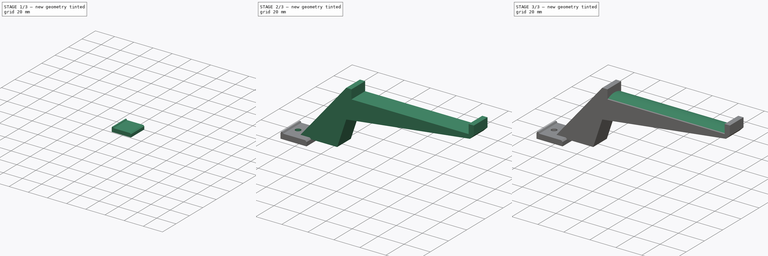
[diagram: build sequence overview — one tinted view per stage of 3, left to right]
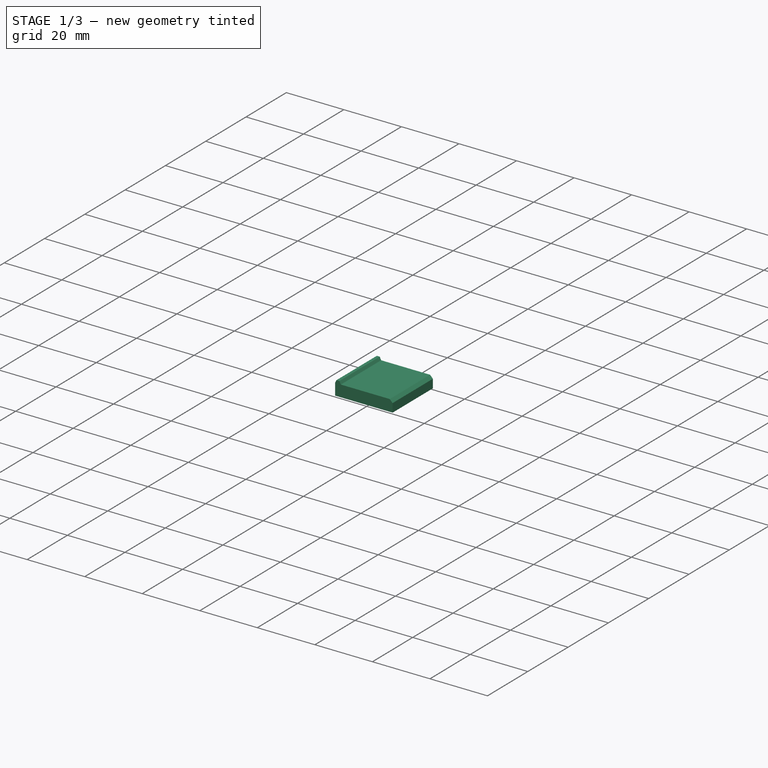
[diagram: stage 1 of 3 — iso view after this stage's code; geometry added in this stage tinted green]
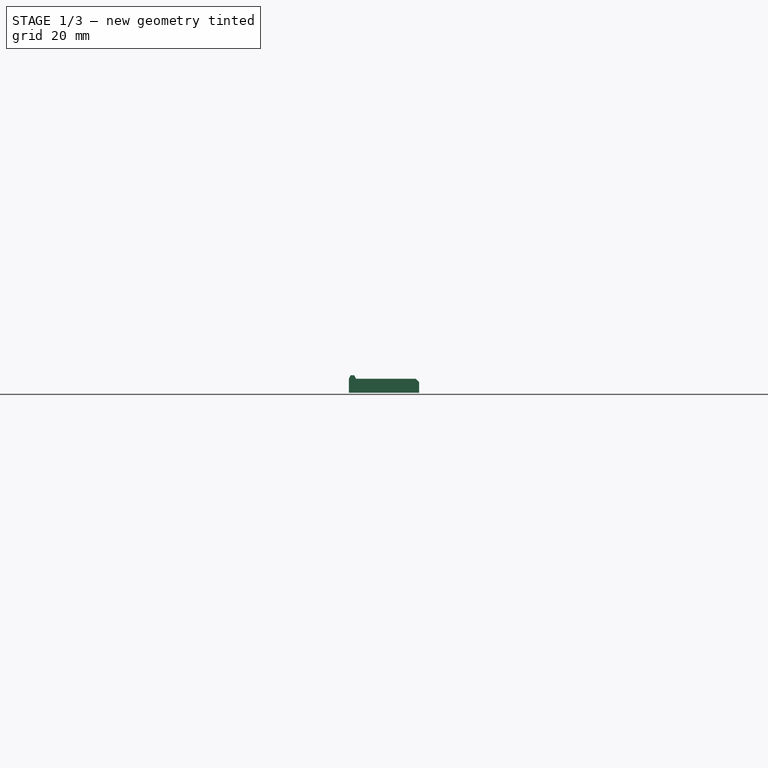
[diagram: stage 1 of 3 — front view after this stage's code; geometry added in this stage tinted green]
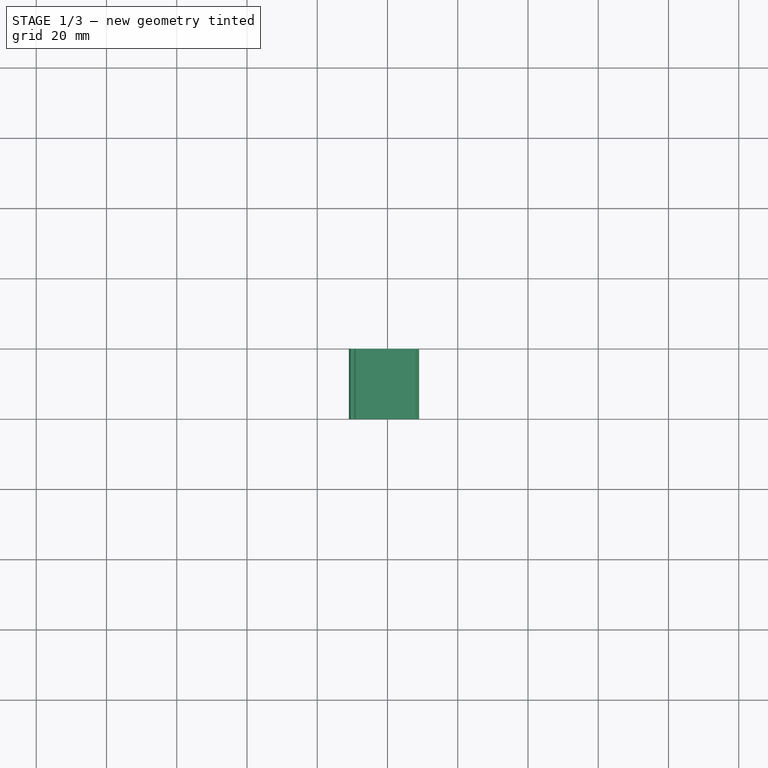
[diagram: stage 1 of 3 — top view after this stage's code; geometry added in this stage tinted green]
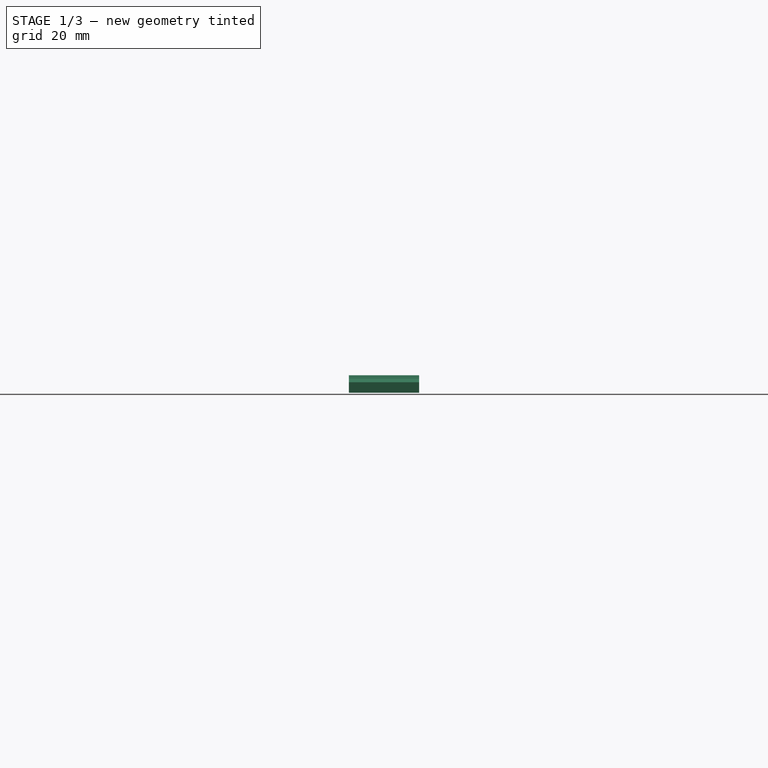
[diagram: stage 1 of 3 — right view after this stage's code; geometry added in this stage tinted green]
FCSTD DOCUMENT  (FreeCAD 0.14R3692 (Git))
Label: addon-spool-holder
License: CC-BY 3.0
LicenseURL: http://creativecommons.org/licenses/by/3.0/
objects: Sketcher::SketchObject×4, PartDesign::Pad×3, Part::Chamfer×1, PartDesign::Pocket×1, Part::MultiFuse×1, Part::Feature×1
note: 15 computed .brp shape members not serialized (recipe doc carries the construction recipe); baked Part::Feature solids carry a one-line shape summary decoded from their .brp

FEATURE [Sketcher::SketchObject] Sketch  label="spool-holder-sketch"
  Placement = pos=(0,0,0) rot=(1,0,0;1.5708rad)
  sketch-geometry (11):
    g0: LineSegment StartX=0 StartY=0 StartZ=0 EndX=29 EndY=0 EndZ=0
    g1: LineSegment StartX=29 StartY=0 StartZ=0 EndX=36 EndY=21 EndZ=0
    g2: LineSegment StartX=0 StartY=0 StartZ=0 EndX=36 EndY=43 EndZ=0
    g3: LineSegment StartX=36 StartY=43 StartZ=0 EndX=40 EndY=43 EndZ=0
    g4: LineSegment StartX=40 StartY=43 StartZ=0 EndX=40 EndY=36 EndZ=0
    g5: LineSegment StartX=40 StartY=36 StartZ=0 EndX=130 EndY=36 EndZ=0
    g6: LineSegment StartX=130 StartY=36 StartZ=0 EndX=130 EndY=43 EndZ=0
    g7: LineSegment StartX=130 StartY=43 StartZ=0 EndX=134 EndY=43 EndZ=0
    g8: LineSegment StartX=134 StartY=43 StartZ=0 EndX=134 EndY=36 EndZ=0
    g9: LineSegment StartX=134 StartY=36 StartZ=0 EndX=131 EndY=33 EndZ=0
    g10: LineSegment StartX=131 StartY=33 StartZ=0 EndX=36 EndY=21 EndZ=0
  constraints (32):
    c: Coincident(g0,g-1)
    c: Horizontal(g0)
    c: Coincident(g1,g0)
    c: Coincident(g2,g-1)
    c: Coincident(g3,g2)
    c: Horizontal(g3)
    c: Coincident(g4,g3)
    c: Vertical(g4)
    c: Coincident(g5,g4)
    c: Horizontal(g5)
    c: Coincident(g6,g5)
    c: Vertical(g6)
    c: Coincident(g7,g6)
    c: Horizontal(g7)
    c: Coincident(g7,g8)
    c: Vertical(g8)
    c: Coincident(g8,g9)
    c: Coincident(g9,g10)
    c: Coincident(g10,g1)
    c: DistanceY(g4) = -7
    c: Equal(g6,g4)
    c: DistanceX(g3) = 4
    c: Equal(g7,g3)
    c: DistanceX(g9,g8) = 3
    c: DistanceX(g1,g9) = 95
    c: DistanceX(g0) = 29
    c: DistanceX(g0,g1) = 7
    c: DistanceX(g4,g5) = 90
    c: DistanceY(g-1,g4) = 36
    c: DistanceY(g-1,g1) = 21
    c: DistanceY(g-1,g9) = 33
    c: DistanceY(g9,g8) = 3
FEATURE [Sketcher::SketchObject] Sketch001  label="base-sketch"
  Placement = pos=(0,0,0) rot=(1,0,0;1.5708rad)
  sketch-geometry (7):
    g0: LineSegment StartX=-11 StartY=-3 StartZ=0 EndX=9 EndY=-3 EndZ=0
    g1: LineSegment StartX=9 StartY=-3 StartZ=0 EndX=9 EndY=1 EndZ=0
    g2: LineSegment StartX=9 StartY=1 StartZ=0 EndX=-9 EndY=1 EndZ=0
    g3: LineSegment StartX=-11 StartY=1 StartZ=0 EndX=-11 EndY=-3 EndZ=0
    g4: LineSegment StartX=-9 StartY=1 StartZ=0 EndX=-9.5 EndY=2 EndZ=0
    g5: LineSegment StartX=-9.5 StartY=2 StartZ=0 EndX=-10.5 EndY=2 EndZ=0
    g6: LineSegment StartX=-10.5 StartY=2 StartZ=0 EndX=-11 EndY=1 EndZ=0
  constraints (21):
    c: Coincident(g0,g1)
    c: Coincident(g1,g2)
    c: Coincident(g3,g0)
    c: Horizontal(g0)
    c: Horizontal(g2)
    c: Vertical(g1)
    c: Vertical(g3)
    c: DistanceX(g0) = 20
    c: DistanceY(g3) = -4
    c: DistanceX(g-1,g1) = 9
    c: DistanceY(g-1,g1) = 1
    c: Coincident(g4,g5)
    c: Coincident(g5,g6)
    c: Coincident(g2,g4)
    c: Coincident(g3,g6)
    c: DistanceX(g5) = -1
    c: DistanceX(g2,g3) = -2
    c: Equal(g6,g4)
    c: DistanceY(g4,g2) = -1
    c: Horizontal(g5)
    c: Equal(g1,g3)
FEATURE [PartDesign::Pad] Pad  label="base-pad"
  Length = 20
  Length2 = 100
  Placement = pos=(0,0,0) rot=(1,0,0;1.5708rad)
  Sketch = -> Sketch001
  Type = 0
FEATURE [Part::Chamfer] Chamfer  label="base-chamfer"
  Base = -> Pad
  Edges = 1 edges r=1: [Edge5]
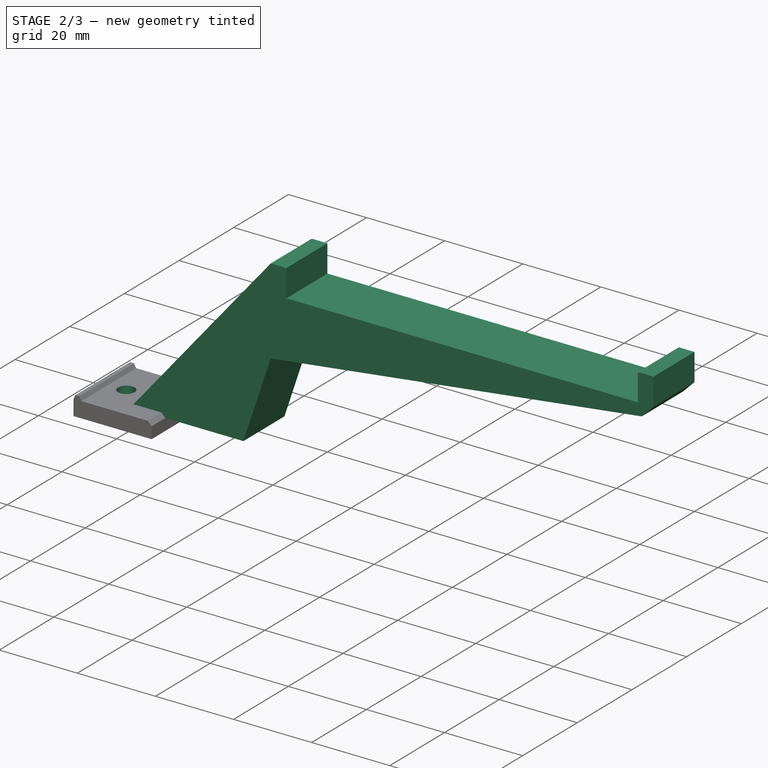
[diagram: stage 2 of 3 — iso view after this stage's code; geometry added in this stage tinted green]
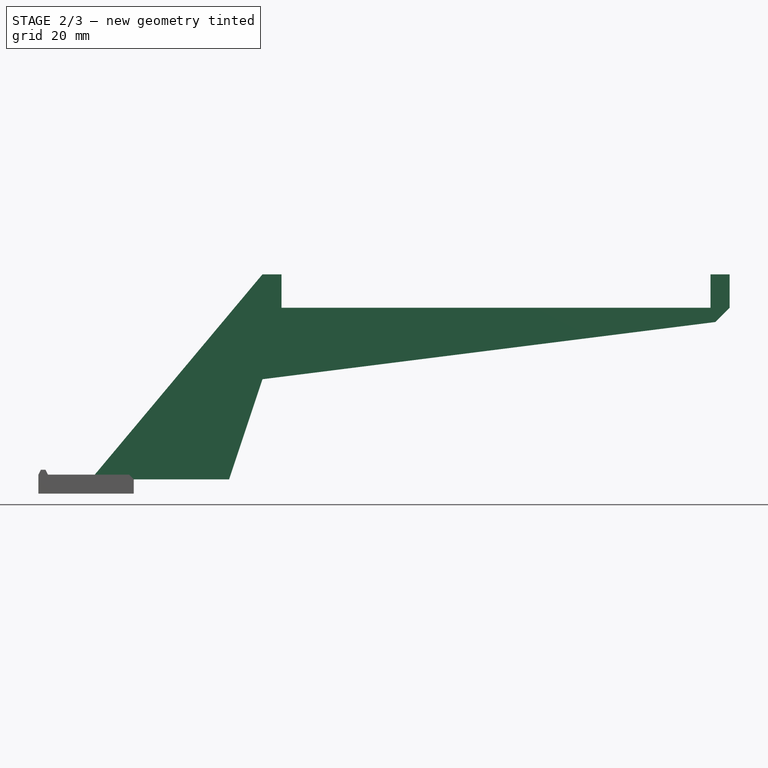
[diagram: stage 2 of 3 — front view after this stage's code; geometry added in this stage tinted green]
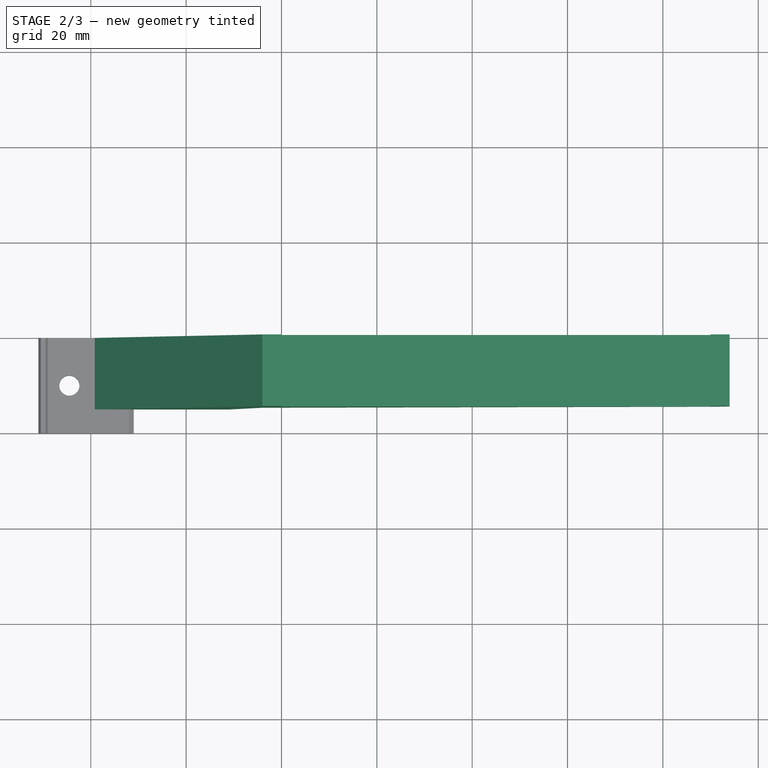
[diagram: stage 2 of 3 — top view after this stage's code; geometry added in this stage tinted green]
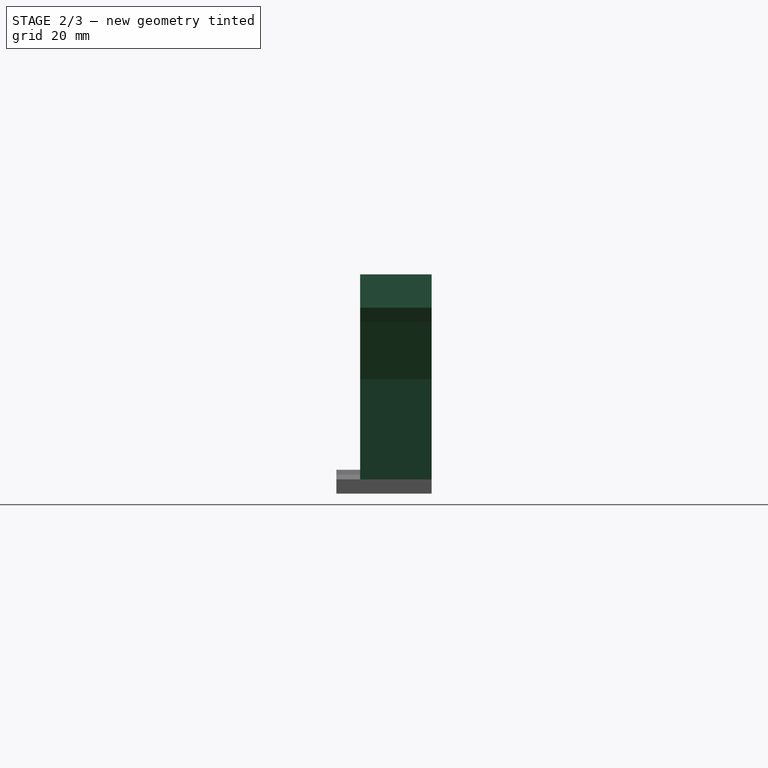
[diagram: stage 2 of 3 — right view after this stage's code; geometry added in this stage tinted green]
FEATURE [PartDesign::Pad] Pad001  label="spool-holder-pad"
  Length = 15
  Length2 = 100
  Placement = pos=(0,0,0) rot=(1,0,0;1.5708rad)
  Sketch = -> Sketch
  Type = 0
FEATURE [Sketcher::SketchObject] Sketch003  label="screw-hole-sketch"
  Placement = pos=(0,0,1) rot=(0,0,1;0rad)
  Support = -> Chamfer [Face6]
  sketch-geometry (1):
    g0: Circle CenterX=-4.5 CenterY=-10 CenterZ=0 NormalX=0 NormalY=0 NormalZ=1 Radius=2.1
  constraints (3):
    c: DistanceY(g-1,g0) = -10
    c: DistanceX(g-1,g0) = -4.5
    c: Radius(g0) = 2.1
FEATURE [PartDesign::Pocket] Pocket  label="screw-hole-pocket"
  Length = 5
  Sketch = -> Sketch003
  Type = 0
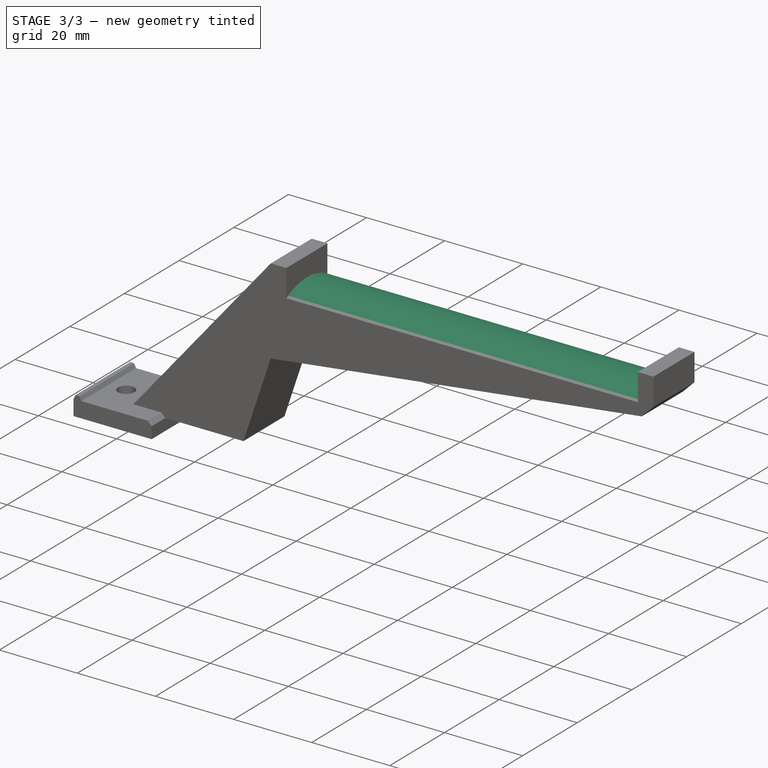
[diagram: stage 3 of 3 — iso view after this stage's code; geometry added in this stage tinted green]
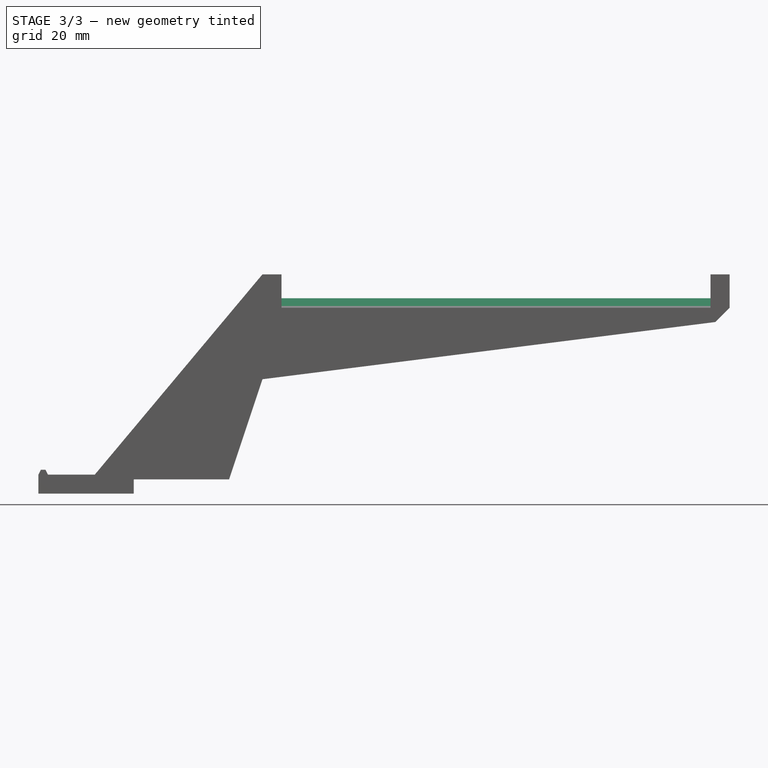
[diagram: stage 3 of 3 — front view after this stage's code; geometry added in this stage tinted green]
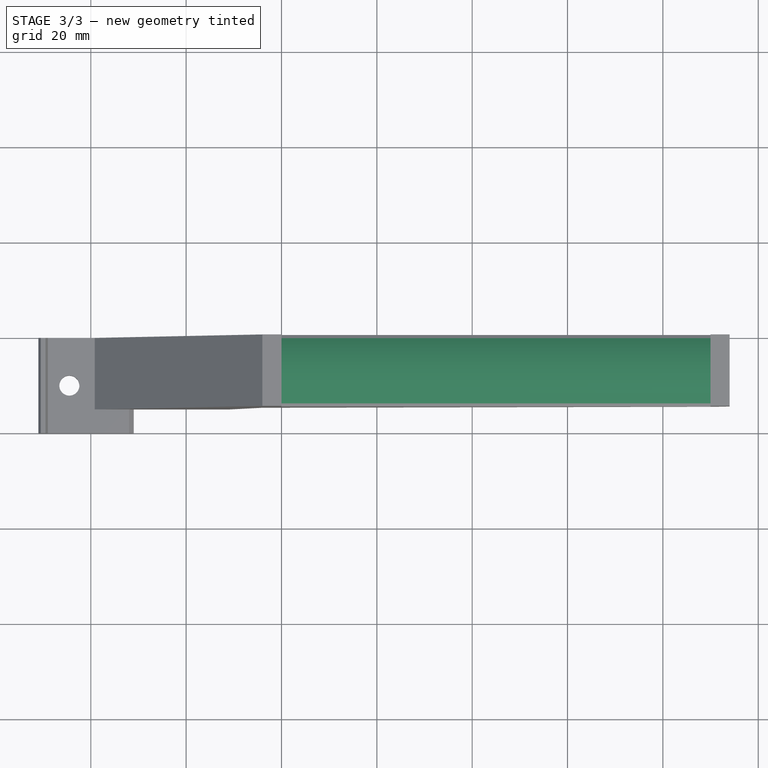
[diagram: stage 3 of 3 — top view after this stage's code; geometry added in this stage tinted green]
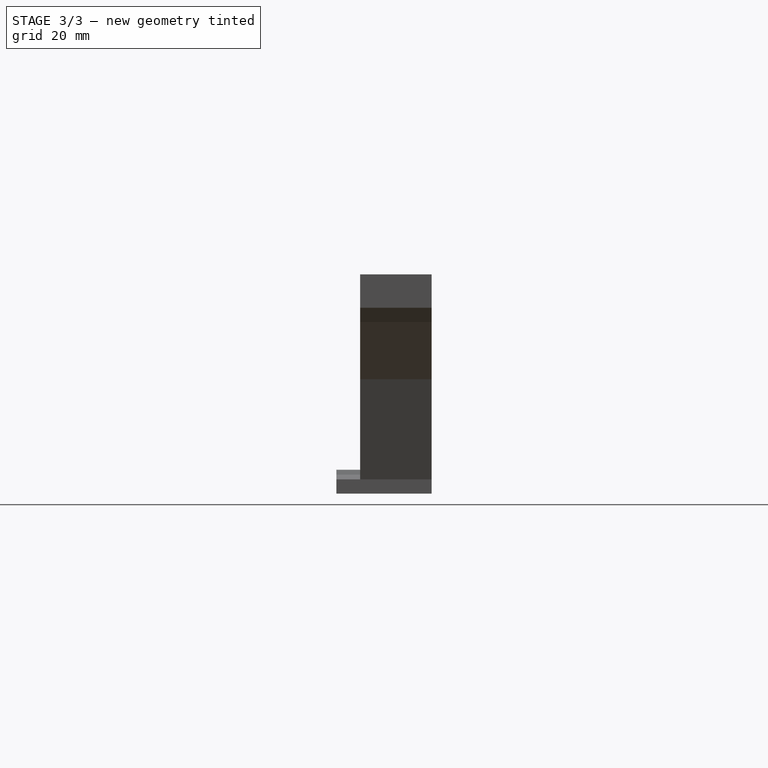
[diagram: stage 3 of 3 — right view after this stage's code; geometry added in this stage tinted green]
FEATURE [Sketcher::SketchObject] Sketch002  label="rounded-sketch"
  ExternalGeometry = -> [Pad001]
  Placement = pos=(40,0,0) rot=(0.707107,0,0.707107;3.14159rad)
  Support = -> Pad001 [Face9]
  sketch-geometry (3):
    g0: ArcOfCircle CenterX=22.9375 CenterY=7.5 CenterZ=0 NormalX=0 NormalY=0 NormalZ=1 Radius=15.0625 StartAngle=5.76198 EndAngle=6.80439
    g1: LineSegment [constr] StartX=22.9375 StartY=7.5 StartZ=0 EndX=38 EndY=7.5 EndZ=0
    g2: LineSegment StartX=36 StartY=15 StartZ=0 EndX=36 EndY=-1e-12 EndZ=0
  constraints (9):
    c: Coincident(g1,g0)
    c: PointOnObject(g1,g0)
    c: Angle(g0,g1) = 1.5708
    c: DistanceX(g1,g0) = -2
    c: Coincident(g0,g2)
    c: Coincident(g2,g0)
    c: Coincident(g0,g-3)
    c: Coincident(g0,g-3)
    c: Angle(g2,g1) = 1.5708
FEATURE [PartDesign::Pad] Pad002  label="rounded-pad"
  Length = 90
  Length2 = 100
  Placement = pos=(0,0,0) rot=(1,0,0;1.5708rad)
  Sketch = -> Sketch002
  Type = 0
FEATURE [Part::MultiFuse] Fusion  label="spool-holder-base-fusion"
  Shapes = -> [Pocket,Pad002]
FEATURE [Part::Feature] Fusion002  label="addon-spool-holder"
  shape: bbox 145 x 20 x 46 mm, 23 faces (baked)
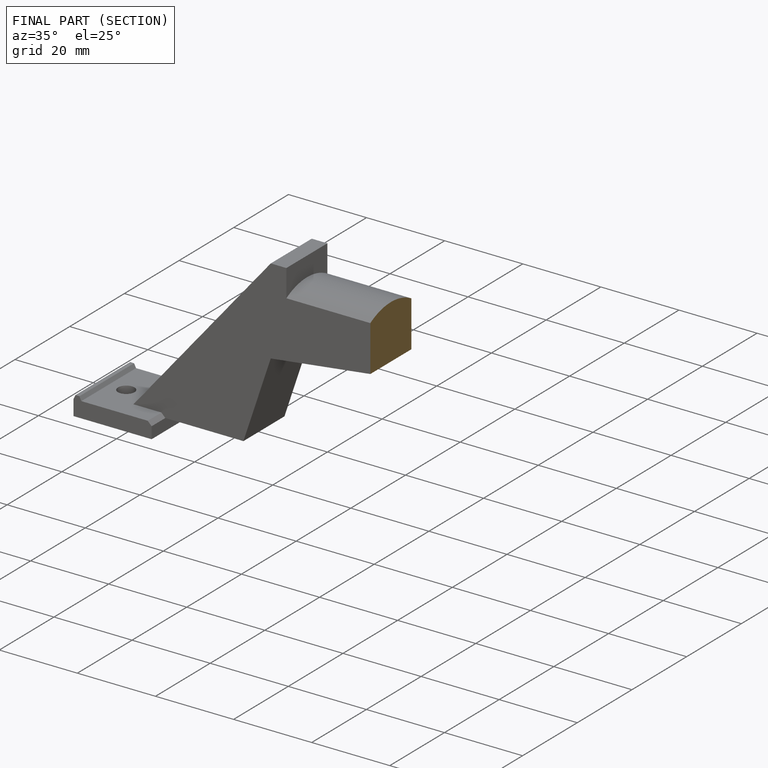
[diagram: finished part — half-section view (interior)]
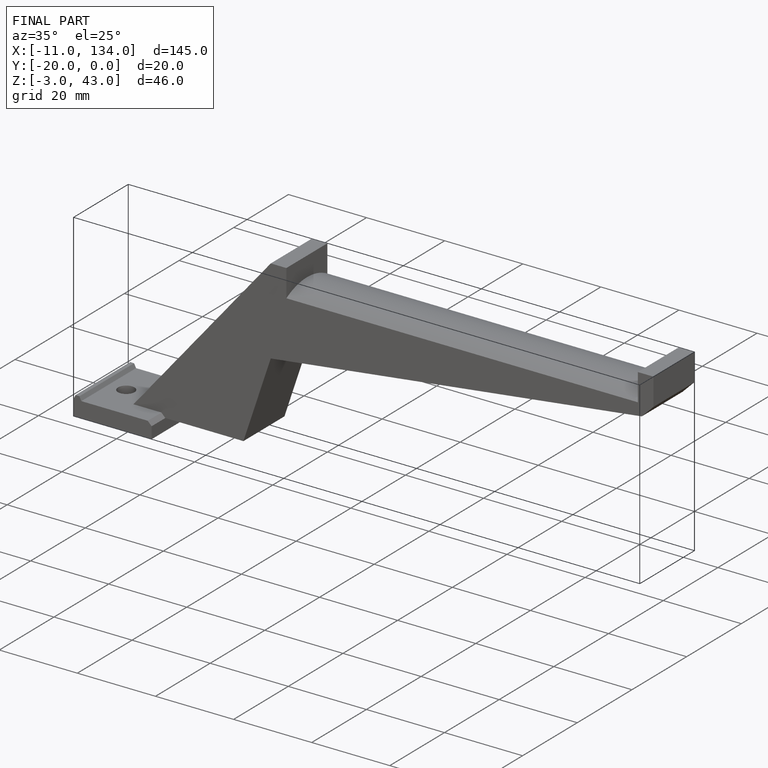
[diagram: finished part — iso view with bounding-box wireframe]
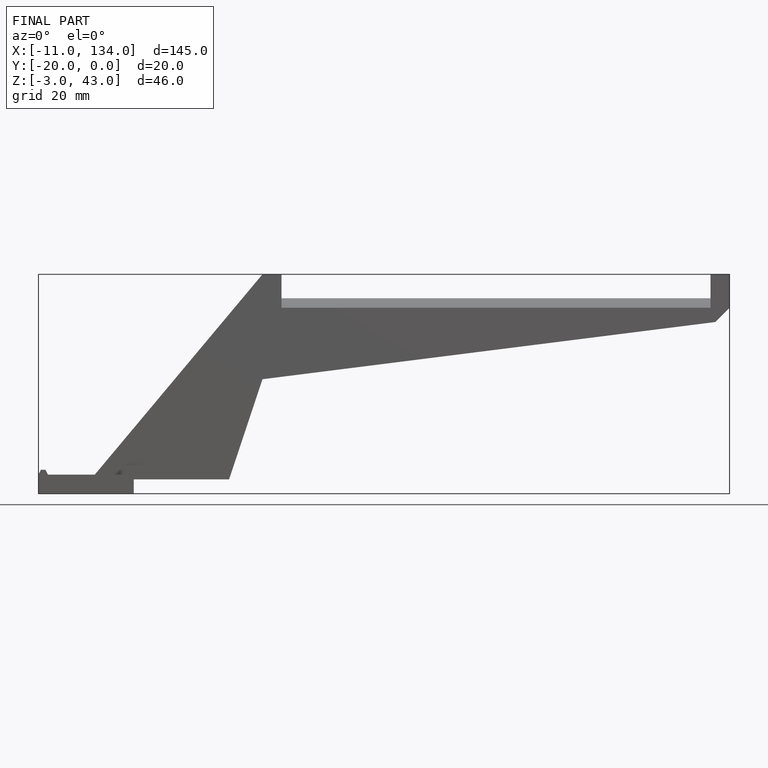
[diagram: finished part — front view with bounding-box wireframe]
